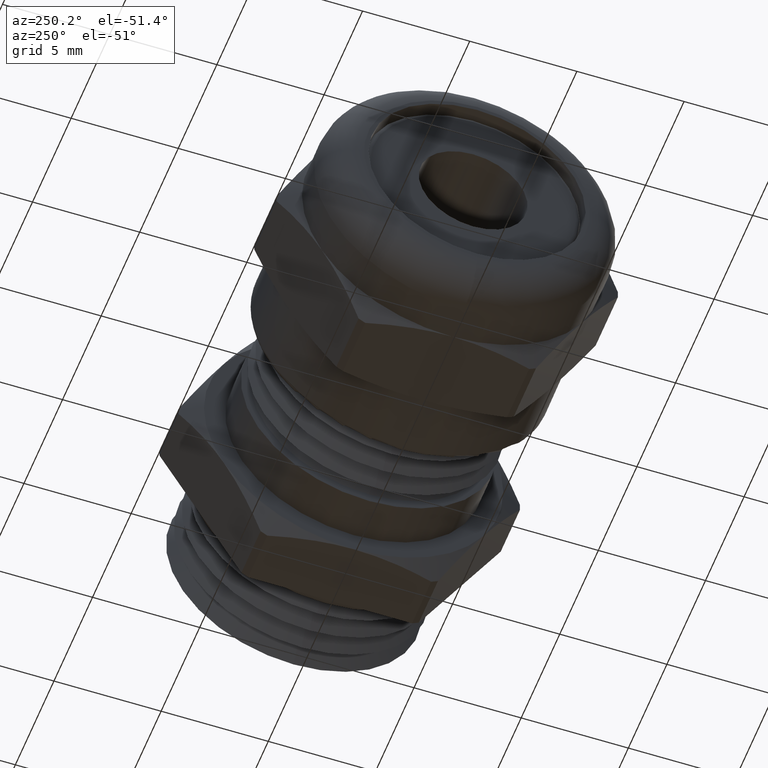
[diagram: clean part render]
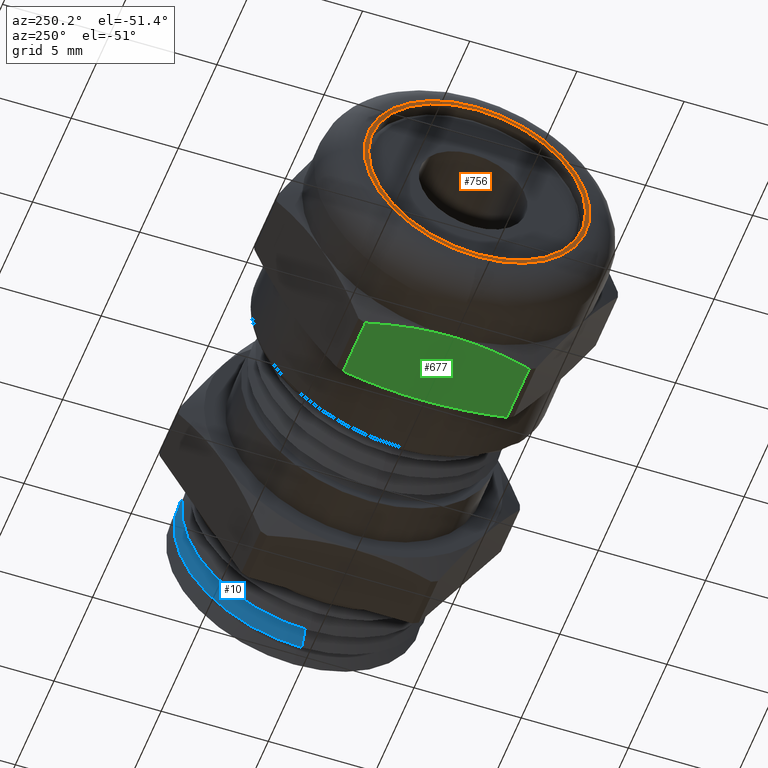
[diagram: same view with three faces highlighted in distinct colors, each labeled with its STEP entity id]
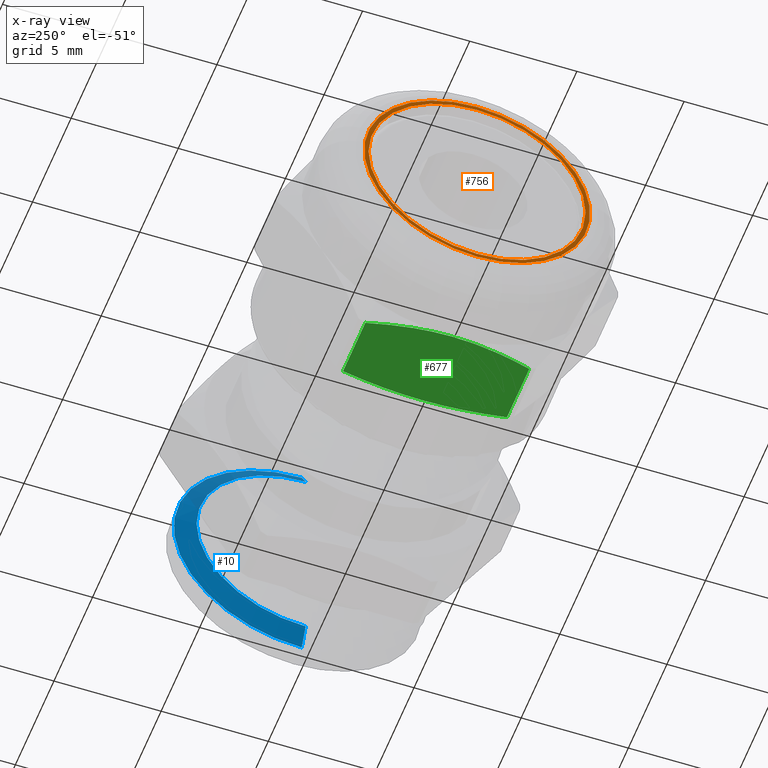
[diagram: x-ray of the same camera — body ghosted, the three highlighted faces saturated]
A machine part, auxiliary view with three faces highlighted in distinct colors.
The next image is the same camera in x-ray (body ghosted, the three faces saturated) — at least one of them is partly hidden behind the body in this view.
Their STEP definitions:

[orange] entity #756 — the highlighted planar face has unit normal (1, 0, 0).
#132 = ORIENTED_EDGE ( 'NONE', *, *, #1160, .T. ) ;
#137 = EDGE_LOOP ( 'NONE', ( #813, #814 ) ) ;
#212 = EDGE_CURVE ( 'NONE', #1147, #213, #1618, .T. ) ;
#213 = VERTEX_POINT ( 'NONE', #1613 ) ;
#755 = EDGE_CURVE ( 'NONE', #213, #1147, #2716, .T. ) ;
#756 = ADVANCED_FACE ( 'NONE', ( #2709, #2708 ), #2706, .F. ) ;
#757 = EDGE_LOOP ( 'NONE', ( #758, #132 ) ) ;
#758 = ORIENTED_EDGE ( 'NONE', *, *, #759, .T. ) ;
#759 = EDGE_CURVE ( 'NONE', #1162, #1161, #2765, .T. ) ;
#813 = ORIENTED_EDGE ( 'NONE', *, *, #755, .F. ) ;
#814 = ORIENTED_EDGE ( 'NONE', *, *, #212, .F. ) ;
#1147 = VERTEX_POINT ( 'NONE', #3249 ) ;
#1160 = EDGE_CURVE ( 'NONE', #1161, #1162, #3298, .T. ) ;
#1161 = VERTEX_POINT ( 'NONE', #3289 ) ;
#1162 = VERTEX_POINT ( 'NONE', #3288 ) ;
#1613 = CARTESIAN_POINT ( 'NONE',  ( -0.4749999999999999800, 0.0000000000000000000, 0.1993750000000000000 ) ) ;
#1614 = DIRECTION ( 'NONE',  ( 0.0000000000000000000, 0.0000000000000000000, 1.000000000000000000 ) ) ;
#1615 = DIRECTION ( 'NONE',  ( -1.000000000000000000, 0.0000000000000000000, 0.0000000000000000000 ) ) ;
#1616 = CARTESIAN_POINT ( 'NONE',  ( -0.4749999999999999800, 0.0000000000000000000, 0.0000000000000000000 ) ) ;
#1617 = AXIS2_PLACEMENT_3D ( 'NONE', #1616, #1615, #1614 ) ;
#1618 = CIRCLE ( 'NONE', #1617, 0.1993750000000000000 ) ;
#2702 = DIRECTION ( 'NONE',  ( 0.0000000000000000000, 0.0000000000000000000, -1.000000000000000000 ) ) ;
#2703 = DIRECTION ( 'NONE',  ( 1.000000000000000000, 0.0000000000000000000, 0.0000000000000000000 ) ) ;
#2704 = CARTESIAN_POINT ( 'NONE',  ( -0.4750000000000000300, 0.1993750000000000000, 0.0000000000000000000 ) ) ;
#2705 = AXIS2_PLACEMENT_3D ( 'NONE', #2704, #2703, #2702 ) ;
#2706 = PLANE ( 'NONE',  #2705 ) ;
#2707 = CARTESIAN_POINT ( 'NONE',  ( -0.4750000000000000300, 0.0000000000000000000, 0.0000000000000000000 ) ) ;
#2708 = FACE_BOUND ( 'NONE', #137, .T. ) ;
#2709 = FACE_OUTER_BOUND ( 'NONE', #757, .T. ) ;
#2710 = DIRECTION ( 'NONE',  ( 0.0000000000000000000, 0.0000000000000000000, 1.000000000000000000 ) ) ;
#2711 = DIRECTION ( 'NONE',  ( -1.000000000000000000, 0.0000000000000000000, 0.0000000000000000000 ) ) ;
#2712 = CARTESIAN_POINT ( 'NONE',  ( -0.4749999999999999800, 0.0000000000000000000, 0.0000000000000000000 ) ) ;
#2713 = AXIS2_PLACEMENT_3D ( 'NONE', #2712, #2711, #2710 ) ;
#2716 = CIRCLE ( 'NONE', #2713, 0.1993750000000000000 ) ;
#2762 = DIRECTION ( 'NONE',  ( 0.0000000000000000000, 0.0000000000000000000, -1.000000000000000000 ) ) ;
#2763 = DIRECTION ( 'NONE',  ( -1.000000000000000000, 0.0000000000000000000, 0.0000000000000000000 ) ) ;
#2764 = AXIS2_PLACEMENT_3D ( 'NONE', #2707, #2763, #2762 ) ;
#2765 = CIRCLE ( 'NONE', #2764, 0.2075000000000000200 ) ;
#3249 = CARTESIAN_POINT ( 'NONE',  ( -0.4749999999999999800, 2.441639555800035400E-017, -0.1993750000000000000 ) ) ;
#3288 = CARTESIAN_POINT ( 'NONE',  ( -0.4750000000000000300, 0.0000000000000000000, -0.2075000000000000200 ) ) ;
#3289 = CARTESIAN_POINT ( 'NONE',  ( -0.4750000000000000300, 2.954460402942989500E-017, 0.2075000000000000200 ) ) ;
#3290 = DIRECTION ( 'NONE',  ( 0.0000000000000000000, 0.0000000000000000000, -1.000000000000000000 ) ) ;
#3291 = DIRECTION ( 'NONE',  ( -1.000000000000000000, 0.0000000000000000000, 0.0000000000000000000 ) ) ;
#3292 = CARTESIAN_POINT ( 'NONE',  ( -0.4750000000000000300, 0.0000000000000000000, 0.0000000000000000000 ) ) ;
#3293 = AXIS2_PLACEMENT_3D ( 'NONE', #3292, #3291, #3290 ) ;
#3298 = CIRCLE ( 'NONE', #3293, 0.2075000000000000200 ) ;

[blue] entity #10 — the highlighted conical surface has half-angle 59.999 deg.
#9 = VERTEX_POINT ( 'NONE', #1221 ) ;
#10 = ADVANCED_FACE ( 'NONE', ( #1220 ), #1218, .T. ) ;
#11 = ORIENTED_EDGE ( 'NONE', *, *, #21, .F. ) ;
#21 = EDGE_CURVE ( 'NONE', #23, #24, #1259, .T. ) ;
#23 = VERTEX_POINT ( 'NONE', #1254 ) ;
#24 = VERTEX_POINT ( 'NONE', #1253 ) ;
#33 = ORIENTED_EDGE ( 'NONE', *, *, #39, .F. ) ;
#39 = EDGE_CURVE ( 'NONE', #24, #40, #1294, .T. ) ;
#40 = VERTEX_POINT ( 'NONE', #1285 ) ;
#42 = ORIENTED_EDGE ( 'NONE', *, *, #45, .T. ) ;
#45 = EDGE_CURVE ( 'NONE', #9, #40, #1284, .T. ) ;
#126 = ORIENTED_EDGE ( 'NONE', *, *, #130, .T. ) ;
#130 = EDGE_CURVE ( 'NONE', #23, #9, #1448, .T. ) ;
#138 = EDGE_LOOP ( 'NONE', ( #11, #126, #42, #33 ) ) ;
#1215 = DIRECTION ( 'NONE',  ( 0.0000000000000000000, 0.0000000000000000000, -1.000000000000000000 ) ) ;
#1216 = DIRECTION ( 'NONE',  ( 1.000000000000000000, 0.0000000000000000000, 0.0000000000000000000 ) ) ;
#1217 = AXIS2_PLACEMENT_3D ( 'NONE', #1219, #1216, #1215 ) ;
#1218 = CONICAL_SURFACE ( 'NONE', #1217, 0.2003581984504589900, 1.047180097904075100 ) ;
#1219 = CARTESIAN_POINT ( 'NONE',  ( 0.3999993954002117900, 0.0000000000000000000, 0.0000000000000000000 ) ) ;
#1220 = FACE_OUTER_BOUND ( 'NONE', #138, .T. ) ;
#1221 = CARTESIAN_POINT ( 'NONE',  ( 0.4199991938420910000, 0.0000000000000000000, 0.2349974692866544600 ) ) ;
#1253 = CARTESIAN_POINT ( 'NONE',  ( 0.3999993954002117900, 2.665788899576033600E-017, -0.2003581984504589900 ) ) ;
#1254 = CARTESIAN_POINT ( 'NONE',  ( 0.3999993954002117900, 0.0000000000000000000, 0.2003581984504589900 ) ) ;
#1255 = DIRECTION ( 'NONE',  ( 0.0000000000000000000, 0.0000000000000000000, 1.000000000000000000 ) ) ;
#1256 = DIRECTION ( 'NONE',  ( -1.000000000000000000, 0.0000000000000000000, 0.0000000000000000000 ) ) ;
#1257 = CARTESIAN_POINT ( 'NONE',  ( 0.3999993954002117900, 0.0000000000000000000, 0.0000000000000000000 ) ) ;
#1258 = AXIS2_PLACEMENT_3D ( 'NONE', #1257, #1256, #1255 ) ;
#1259 = CIRCLE ( 'NONE', #1258, 0.2003581984504589900 ) ;
#1280 = DIRECTION ( 'NONE',  ( 0.0000000000000000000, 0.0000000000000000000, -1.000000000000000000 ) ) ;
#1281 = DIRECTION ( 'NONE',  ( -1.000000000000000000, 0.0000000000000000000, 0.0000000000000000000 ) ) ;
#1282 = CARTESIAN_POINT ( 'NONE',  ( 0.4199991938420910000, 0.0000000000000000000, 0.0000000000000000000 ) ) ;
#1283 = AXIS2_PLACEMENT_3D ( 'NONE', #1282, #1281, #1280 ) ;
#1284 = CIRCLE ( 'NONE', #1283, 0.2349974692866544600 ) ;
#1285 = CARTESIAN_POINT ( 'NONE',  ( 0.4199991938420910000, 2.877888985696298800E-017, -0.2349974692866544600 ) ) ;
#1286 = DIRECTION ( 'NONE',  ( 0.5000151149185492200, 0.0000000000000000000, -0.8660166770062744900 ) ) ;
#1287 = VECTOR ( 'NONE', #1286, 39.37007874015748100 ) ;
#1288 = CARTESIAN_POINT ( 'NONE',  ( 0.3999993954002117900, 0.0000000000000000000, -0.2003581984504589900 ) ) ;
#1294 = LINE ( 'NONE', #1288, #1287 ) ;
#1446 = VECTOR ( 'NONE', #1507, 39.37007874015748100 ) ;
#1447 = CARTESIAN_POINT ( 'NONE',  ( 0.3999993954002117900, 2.453680264152847500E-017, 0.2003581984504589900 ) ) ;
#1448 = LINE ( 'NONE', #1447, #1446 ) ;
#1507 = DIRECTION ( 'NONE',  ( 0.5000151149185492200, 1.060564551503961100E-016, 0.8660166770062744900 ) ) ;

[green] entity #677 — the highlighted planar face has unit normal (0, 0, -1).
#579 = EDGE_CURVE ( 'NONE', #580, #658, #2325, .T. ) ;
#580 = VERTEX_POINT ( 'NONE', #2321 ) ;
#593 = VERTEX_POINT ( 'NONE', #2351 ) ;
#599 = VERTEX_POINT ( 'NONE', #2405 ) ;
#601 = EDGE_CURVE ( 'NONE', #599, #593, #2404, .T. ) ;
#658 = VERTEX_POINT ( 'NONE', #2483 ) ;
#677 = ADVANCED_FACE ( 'NONE', ( #2544 ), #2541, .T. ) ;
#678 = EDGE_LOOP ( 'NONE', ( #679, #680, #740, #742, #743, #745 ) ) ;
#679 = ORIENTED_EDGE ( 'NONE', *, *, #579, .T. ) ;
#680 = ORIENTED_EDGE ( 'NONE', *, *, #681, .T. ) ;
#681 = EDGE_CURVE ( 'NONE', #658, #1136, #2529, .T. ) ;
#740 = ORIENTED_EDGE ( 'NONE', *, *, #741, .T. ) ;
#741 = EDGE_CURVE ( 'NONE', #1136, #593, #2684, .T. ) ;
#742 = ORIENTED_EDGE ( 'NONE', *, *, #601, .F. ) ;
#743 = ORIENTED_EDGE ( 'NONE', *, *, #744, .T. ) ;
#744 = EDGE_CURVE ( 'NONE', #599, #1194, #2675, .T. ) ;
#745 = ORIENTED_EDGE ( 'NONE', *, *, #746, .T. ) ;
#746 = EDGE_CURVE ( 'NONE', #1194, #580, #2726, .T. ) ;
#1136 = VERTEX_POINT ( 'NONE', #3263 ) ;
#1194 = VERTEX_POINT ( 'NONE', #3403 ) ;
#2321 = CARTESIAN_POINT ( 'NONE',  ( -0.3227720146361997600, 0.1505232540174438700, -0.2750000000000000800 ) ) ;
#2322 = DIRECTION ( 'NONE',  ( 1.000000000000000000, 0.0000000000000000000, 0.0000000000000000000 ) ) ;
#2323 = VECTOR ( 'NONE', #2322, 39.37007874015748100 ) ;
#2324 = CARTESIAN_POINT ( 'NONE',  ( -1.240579022644009900, 0.1505232540174439000, -0.2750000000000001300 ) ) ;
#2325 = LINE ( 'NONE', #2324, #2323 ) ;
#2351 = CARTESIAN_POINT ( 'NONE',  ( -0.2090128540192486300, -0.1505232540174438700, -0.2750000000000000800 ) ) ;
#2401 = DIRECTION ( 'NONE',  ( 1.000000000000000000, 0.0000000000000000000, 0.0000000000000000000 ) ) ;
#2402 = VECTOR ( 'NONE', #2401, 39.37007874015748100 ) ;
#2403 = CARTESIAN_POINT ( 'NONE',  ( -1.240579022644009900, -0.1505232540174439000, -0.2750000000000001300 ) ) ;
#2404 = LINE ( 'NONE', #2403, #2402 ) ;
#2405 = CARTESIAN_POINT ( 'NONE',  ( -0.3227720146361997600, -0.1505232540174438700, -0.2750000000000000800 ) ) ;
#2483 = CARTESIAN_POINT ( 'NONE',  ( -0.2090128540192486600, 0.1505232540174439000, -0.2750000000000001300 ) ) ;
#2529 = B_SPLINE_CURVE_WITH_KNOTS ( 'NONE', 3,
 ( #2574, #2573, #2572, #2571 ),
 .UNSPECIFIED., .F., .F.,
 ( 4, 4 ),
 ( 0.01593734586744077800, 0.01979017886412375700 ),
 .UNSPECIFIED. ) ;
#2530 = DIRECTION ( 'NONE',  ( -1.000000000000000000, 0.0000000000000000000, 0.0000000000000000000 ) ) ;
#2531 = DIRECTION ( 'NONE',  ( 0.0000000000000000000, 0.0000000000000000000, -1.000000000000000000 ) ) ;
#2540 = CARTESIAN_POINT ( 'NONE',  ( -1.240579022644009900, -0.1505232540174439000, -0.2750000000000001300 ) ) ;
#2541 = PLANE ( 'NONE',  #2543 ) ;
#2543 = AXIS2_PLACEMENT_3D ( 'NONE', #2540, #2531, #2530 ) ;
#2544 = FACE_OUTER_BOUND ( 'NONE', #678, .T. ) ;
#2571 = CARTESIAN_POINT ( 'NONE',  ( -0.1950000000000000300, 0.0000000000000000000, -0.2750000000000001300 ) ) ;
#2572 = CARTESIAN_POINT ( 'NONE',  ( -0.1950000000000000300, 0.05027435489933333700, -0.2750000000000001300 ) ) ;
#2573 = CARTESIAN_POINT ( 'NONE',  ( -0.2002598396695897100, 0.1004361734010999300, -0.2750000000000001300 ) ) ;
#2574 = CARTESIAN_POINT ( 'NONE',  ( -0.2090128540192486600, 0.1505232540174439000, -0.2750000000000001300 ) ) ;
#2675 = B_SPLINE_CURVE_WITH_KNOTS ( 'NONE', 3,
 ( #2733, #2732, #2731, #2730, #2729, #2728 ),
 .UNSPECIFIED., .F., .F.,
 ( 4, 2, 4 ),
 ( 0.007483810082877724200, 0.009415684017632108100, 0.01134755795238649400 ),
 .UNSPECIFIED. ) ;
#2678 = CARTESIAN_POINT ( 'NONE',  ( -0.2090128540192486300, -0.1505232540174438700, -0.2750000000000000800 ) ) ;
#2679 = CARTESIAN_POINT ( 'NONE',  ( -0.2046517302503850800, -0.1255677416575864700, -0.2750000000000001300 ) ) ;
#2680 = CARTESIAN_POINT ( 'NONE',  ( -0.2010924396282074100, -0.1003650817965566800, -0.2750000000000001300 ) ) ;
#2681 = CARTESIAN_POINT ( 'NONE',  ( -0.1962677670789086700, -0.05014449018254667900, -0.2750000000000001900 ) ) ;
#2682 = CARTESIAN_POINT ( 'NONE',  ( -0.1950000000000000300, -0.02505868289651300500, -0.2750000000000000800 ) ) ;
#2683 = CARTESIAN_POINT ( 'NONE',  ( -0.1950000000000000300, 0.0000000000000000000, -0.2750000000000001300 ) ) ;
#2684 = B_SPLINE_CURVE_WITH_KNOTS ( 'NONE', 3,
 ( #2683, #2682, #2681, #2680, #2679, #2678 ),
 .UNSPECIFIED., .F., .F.,
 ( 4, 2, 4 ),
 ( 0.01979017886412375700, 0.02171057984212578300, 0.02363098082012780900 ),
 .UNSPECIFIED. ) ;
#2717 = CARTESIAN_POINT ( 'NONE',  ( -0.3227720146361997600, 0.1505232540174438700, -0.2750000000000000800 ) ) ;
#2718 = CARTESIAN_POINT ( 'NONE',  ( -0.3295278864882092400, 0.1261521065652548000, -0.2750000000000001300 ) ) ;
#2719 = CARTESIAN_POINT ( 'NONE',  ( -0.3351162609246261500, 0.1014671253753016400, -0.2750000000000001300 ) ) ;
#2720 = CARTESIAN_POINT ( 'NONE',  ( -0.3428806826415498600, 0.05117989896422019800, -0.2750000000000001900 ) ) ;
#2721 = CARTESIAN_POINT ( 'NONE',  ( -0.3450000000000000300, 0.02541898642020286300, -0.2750000000000000800 ) ) ;
#2722 = CARTESIAN_POINT ( 'NONE',  ( -0.3450000000000000300, 0.0000000000000000000, -0.2750000000000001300 ) ) ;
#2726 = B_SPLINE_CURVE_WITH_KNOTS ( 'NONE', 3,
 ( #2722, #2721, #2720, #2719, #2718, #2717 ),
 .UNSPECIFIED., .F., .F.,
 ( 4, 2, 4 ),
 ( 0.01134755795238649400, 0.01327993013192699900, 0.01521230231146750700 ),
 .UNSPECIFIED. ) ;
#2728 = CARTESIAN_POINT ( 'NONE',  ( -0.3450000000000000300, 0.0000000000000000000, -0.2750000000000001300 ) ) ;
#2729 = CARTESIAN_POINT ( 'NONE',  ( -0.3450000000000001400, -0.02541243236318096300, -0.2750000000000001300 ) ) ;
#2730 = CARTESIAN_POINT ( 'NONE',  ( -0.3429342776278272400, -0.05066183029868536600, -0.2750000000000001300 ) ) ;
#2731 = CARTESIAN_POINT ( 'NONE',  ( -0.3352329082625756800, -0.1008788745532821900, -0.2750000000000001900 ) ) ;
#2732 = CARTESIAN_POINT ( 'NONE',  ( -0.3295796814890804000, -0.1259652611615601200, -0.2750000000000000800 ) ) ;
#2733 = CARTESIAN_POINT ( 'NONE',  ( -0.3227720146361997600, -0.1505232540174438700, -0.2750000000000000800 ) ) ;
#3263 = CARTESIAN_POINT ( 'NONE',  ( -0.1950000000000000300, 0.0000000000000000000, -0.2750000000000001300 ) ) ;
#3403 = CARTESIAN_POINT ( 'NONE',  ( -0.3450000000000000300, 0.0000000000000000000, -0.2750000000000001300 ) ) ;